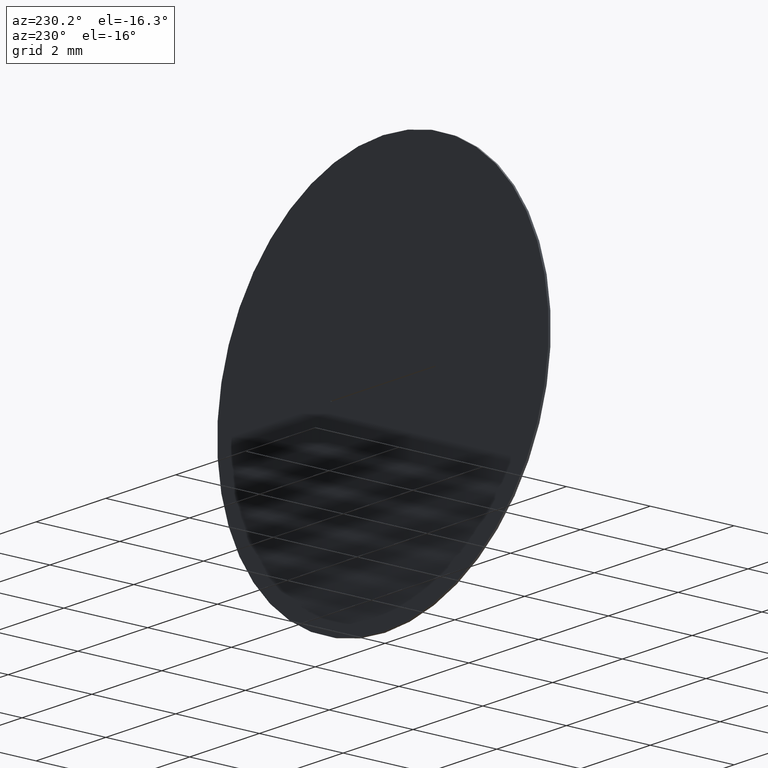
[diagram: clean part render]
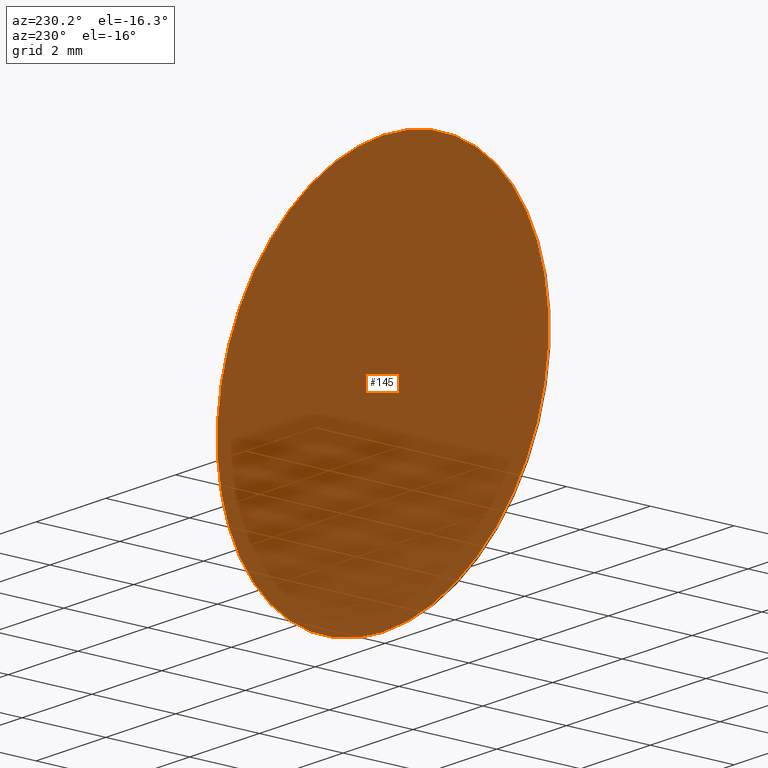
[diagram: same view with one face highlighted and labeled with its STEP entity id]
A machine part, auxiliary view. The second image highlights one B-rep face of the part: STEP entity #145.
In plain terms, the highlighted planar face has unit normal (0, 1, 0).
Its self-contained STEP definition (entity closure, byte-faithful):
#2 = CARTESIAN_POINT ( 'NONE',  ( -1.500000000000000000, 0.05000000000000000278, -0.009999999999999998473 ) ) ;
#3 = DIRECTION ( 'NONE',  ( 0.000000000000000000, 1.000000000000000000, 0.000000000000000000 ) ) ;
#7 = FACE_BOUND ( 'NONE', #42, .T. ) ;
#12 = AXIS2_PLACEMENT_3D ( 'NONE', #252, #253, #300 ) ;
#19 = VERTEX_POINT ( 'NONE', #2 ) ;
#25 = ORIENTED_EDGE ( 'NONE', *, *, #279, .F. ) ;
#31 = DIRECTION ( 'NONE',  ( 0.000000000000000000, -0.000000000000000000, 1.000000000000000000 ) ) ;
#33 = PLANE ( 'NONE',  #102 ) ;
#40 = VECTOR ( 'NONE', #185, 1000.000000000000000 ) ;
#42 = EDGE_LOOP ( 'NONE', ( #188, #140, #89, #25 ) ) ;
#45 = VERTEX_POINT ( 'NONE', #198 ) ;
#59 = LINE ( 'NONE', #283, #231 ) ;
#63 = LINE ( 'NONE', #161, #40 ) ;
#69 = ORIENTED_EDGE ( 'NONE', *, *, #95, .T. ) ;
#80 = FACE_OUTER_BOUND ( 'NONE', #309, .T. ) ;
#89 = ORIENTED_EDGE ( 'NONE', *, *, #291, .F. ) ;
#92 = AXIS2_PLACEMENT_3D ( 'NONE', #199, #125, #154 ) ;
#94 = VERTEX_POINT ( 'NONE', #97 ) ;
#95 = EDGE_CURVE ( 'NONE', #163, #45, #129, .T. ) ;
#97 = CARTESIAN_POINT ( 'NONE',  ( 1.500000000000000000, 0.05000000000000000278, -0.009999999999999998473 ) ) ;
#102 = AXIS2_PLACEMENT_3D ( 'NONE', #215, #3, #31 ) ;
#124 = CARTESIAN_POINT ( 'NONE',  ( -1.500000000000000000, 0.05000000000000000278, -0.009999999999999998473 ) ) ;
#125 = DIRECTION ( 'NONE',  ( 0.000000000000000000, 1.000000000000000000, 0.000000000000000000 ) ) ;
#126 = LINE ( 'NONE', #127, #302 ) ;
#127 = CARTESIAN_POINT ( 'NONE',  ( -1.500000000000000000, 0.05000000000000000278, 0.01000000000000000194 ) ) ;
#129 = CIRCLE ( 'NONE', #92, 4.750000000000000000 ) ;
#140 = ORIENTED_EDGE ( 'NONE', *, *, #256, .F. ) ;
#145 = ADVANCED_FACE ( 'NONE', ( #80, #7 ), #33, .T. ) ;
#152 = LINE ( 'NONE', #124, #205 ) ;
#154 = DIRECTION ( 'NONE',  ( 0.000000000000000000, 0.000000000000000000, 1.000000000000000000 ) ) ;
#161 = CARTESIAN_POINT ( 'NONE',  ( -1.500000000000000000, 0.05000000000000000278, -0.009999999999999998473 ) ) ;
#163 = VERTEX_POINT ( 'NONE', #247 ) ;
#179 = EDGE_CURVE ( 'NONE', #94, #19, #152, .T. ) ;
#181 = CIRCLE ( 'NONE', #12, 4.750000000000000000 ) ;
#185 = DIRECTION ( 'NONE',  ( 0.000000000000000000, 0.000000000000000000, 1.000000000000000000 ) ) ;
#188 = ORIENTED_EDGE ( 'NONE', *, *, #179, .F. ) ;
#198 = CARTESIAN_POINT ( 'NONE',  ( 0.000000000000000000, 0.05000000000000000278, -4.750000000000000000 ) ) ;
#199 = CARTESIAN_POINT ( 'NONE',  ( 0.000000000000000000, 0.05000000000000000278, 0.000000000000000000 ) ) ;
#202 = DIRECTION ( 'NONE',  ( -0.000000000000000000, -0.000000000000000000, -1.000000000000000000 ) ) ;
#204 = CARTESIAN_POINT ( 'NONE',  ( 1.500000000000000000, 0.05000000000000000278, 0.01000000000000000194 ) ) ;
#205 = VECTOR ( 'NONE', #273, 1000.000000000000000 ) ;
#211 = VERTEX_POINT ( 'NONE', #304 ) ;
#215 = CARTESIAN_POINT ( 'NONE',  ( 0.000000000000000000, 0.05000000000000000278, 0.000000000000000000 ) ) ;
#223 = DIRECTION ( 'NONE',  ( 1.000000000000000000, 0.000000000000000000, 0.000000000000000000 ) ) ;
#231 = VECTOR ( 'NONE', #202, 1000.000000000000000 ) ;
#247 = CARTESIAN_POINT ( 'NONE',  ( 5.817072295949927426E-16, 0.05000000000000000278, 4.750000000000000000 ) ) ;
#252 = CARTESIAN_POINT ( 'NONE',  ( 0.000000000000000000, 0.05000000000000000278, 0.000000000000000000 ) ) ;
#253 = DIRECTION ( 'NONE',  ( 0.000000000000000000, 1.000000000000000000, 0.000000000000000000 ) ) ;
#256 = EDGE_CURVE ( 'NONE', #292, #94, #59, .T. ) ;
#273 = DIRECTION ( 'NONE',  ( -1.000000000000000000, -0.000000000000000000, -0.000000000000000000 ) ) ;
#279 = EDGE_CURVE ( 'NONE', #19, #211, #63, .T. ) ;
#283 = CARTESIAN_POINT ( 'NONE',  ( 1.500000000000000000, 0.05000000000000000278, -0.009999999999999998473 ) ) ;
#291 = EDGE_CURVE ( 'NONE', #211, #292, #126, .T. ) ;
#292 = VERTEX_POINT ( 'NONE', #204 ) ;
#300 = DIRECTION ( 'NONE',  ( 0.000000000000000000, 0.000000000000000000, 1.000000000000000000 ) ) ;
#301 = EDGE_CURVE ( 'NONE', #45, #163, #181, .T. ) ;
#302 = VECTOR ( 'NONE', #223, 1000.000000000000000 ) ;
#304 = CARTESIAN_POINT ( 'NONE',  ( -1.500000000000000000, 0.05000000000000000278, 0.01000000000000000194 ) ) ;
#309 = EDGE_LOOP ( 'NONE', ( #311, #69 ) ) ;
#311 = ORIENTED_EDGE ( 'NONE', *, *, #301, .T. ) ;